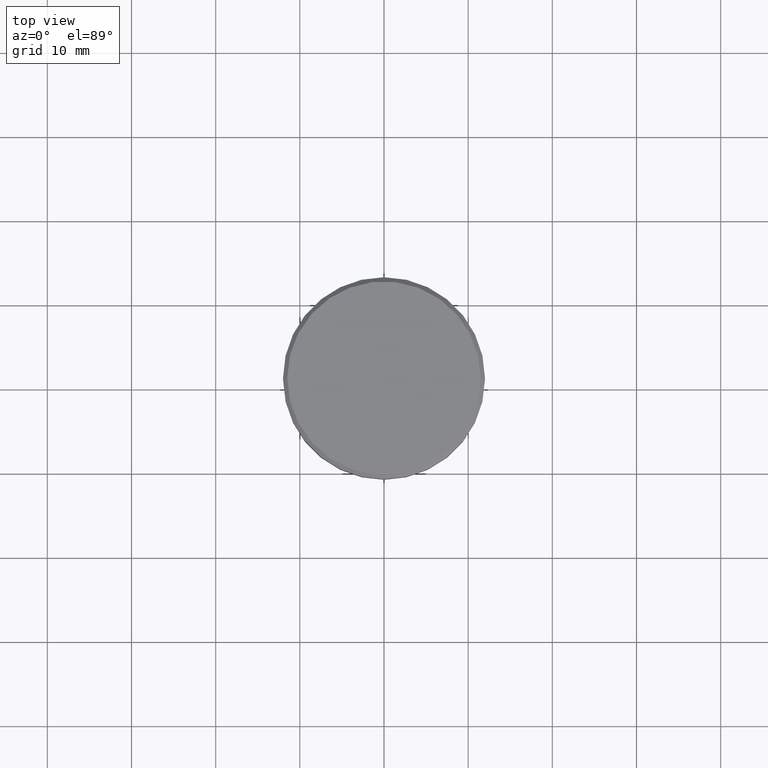
[diagram: clean part render]
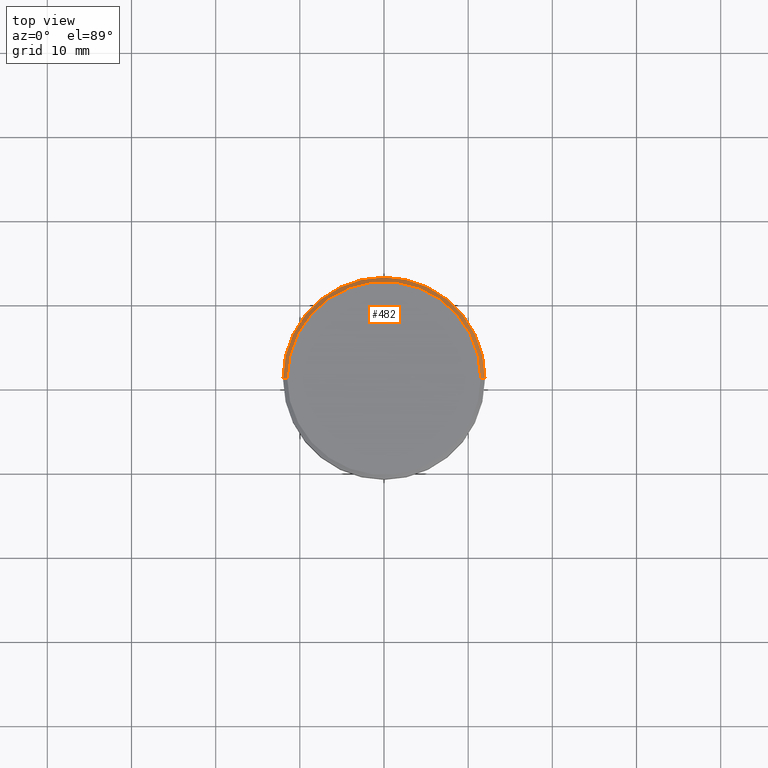
[diagram: same view with one face highlighted and labeled with its STEP entity id]
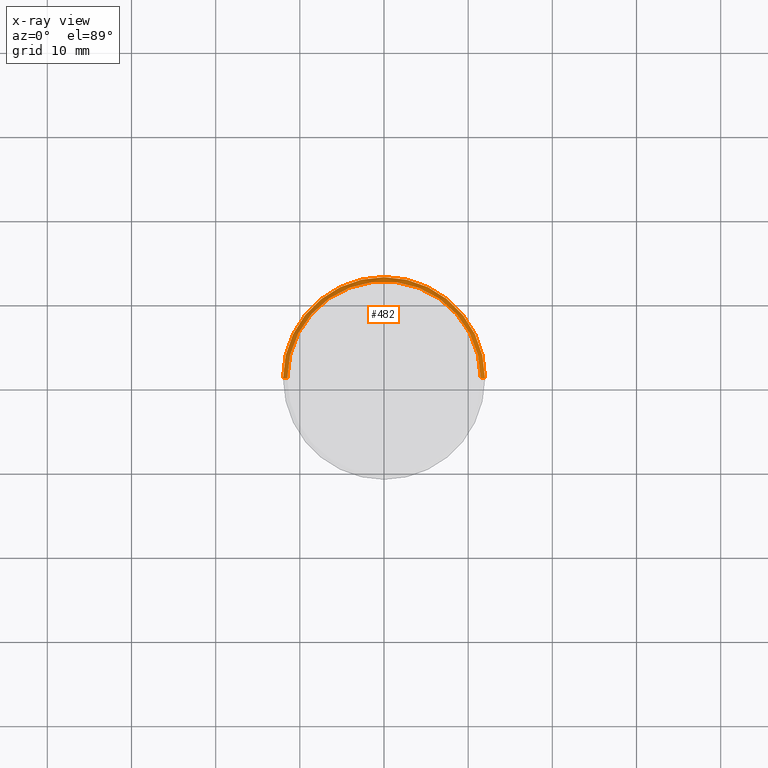
[diagram: x-ray of the same camera — body ghosted, the highlighted face saturated]
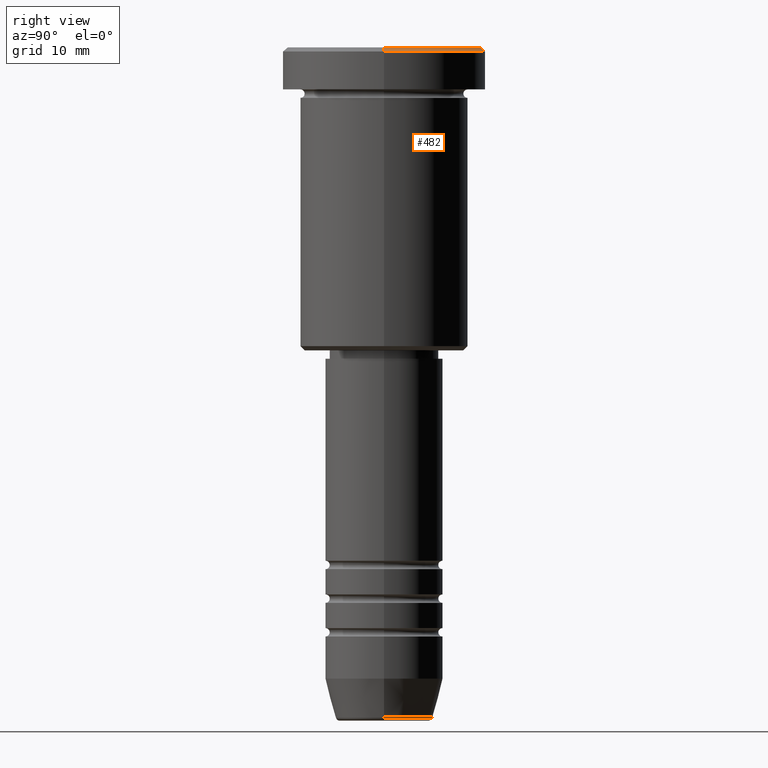
[diagram: same view with one face highlighted and labeled with its STEP entity id]
A machine part, top view. The second image highlights one B-rep face of the part: STEP entity #482.
The next image is the same camera in x-ray: the body ghosted, the highlighted face saturated — about 0% of this face is hidden behind the body in this view.
A second angle (right view) of the same face is appended — the face is thin or edge-on in the first view.
In plain terms, the highlighted conical surface has half-angle 45 deg.
Its self-contained STEP definition (entity closure, byte-faithful):
#8 = EDGE_CURVE ( 'NONE', #512, #329, #843, .T. ) ;
#16 = EDGE_CURVE ( 'NONE', #367, #329, #550, .T. ) ;
#20 = DIRECTION ( 'NONE',  ( -0.000000000000000000, -0.000000000000000000, 1.000000000000000000 ) ) ;
#39 = VERTEX_POINT ( 'NONE', #718 ) ;
#69 = CIRCLE ( 'NONE', #738, 11.49999999999999467 ) ;
#156 = DIRECTION ( 'NONE',  ( 1.000000000000000000, 0.000000000000000000, 0.000000000000000000 ) ) ;
#202 = ORIENTED_EDGE ( 'NONE', *, *, #1178, .F. ) ;
#218 = CARTESIAN_POINT ( 'NONE',  ( 0.000000000000000000, 0.000000000000000000, 0.000000000000000000 ) ) ;
#227 = VECTOR ( 'NONE', #323, 1000.000000000000000 ) ;
#237 = ORIENTED_EDGE ( 'NONE', *, *, #8, .T. ) ;
#287 = CARTESIAN_POINT ( 'NONE',  ( 0.000000000000000000, 0.000000000000000000, 0.000000000000000000 ) ) ;
#295 = CARTESIAN_POINT ( 'NONE',  ( 11.49999999999999467, 1.408343819019455584E-15, 0.000000000000000000 ) ) ;
#323 = DIRECTION ( 'NONE',  ( 0.7071067811865524577, 8.659560562354993255E-17, -0.7071067811865426878 ) ) ;
#329 = VERTEX_POINT ( 'NONE', #1094 ) ;
#351 = CARTESIAN_POINT ( 'NONE',  ( -11.49999999999999467, 0.000000000000000000, 0.000000000000000000 ) ) ;
#358 = DIRECTION ( 'NONE',  ( -0.7071067811865524577, 0.000000000000000000, -0.7071067811865426878 ) ) ;
#367 = VERTEX_POINT ( 'NONE', #446 ) ;
#381 = CONICAL_SURFACE ( 'NONE', #712, 11.49999999999999467, 0.7853981633974552734 ) ;
#446 = CARTESIAN_POINT ( 'NONE',  ( -12.00000000000000000, 1.469576158976823947E-15, -0.4999999999999987232 ) ) ;
#482 = ADVANCED_FACE ( 'NONE', ( #762 ), #381, .T. ) ;
#512 = VERTEX_POINT ( 'NONE', #573 ) ;
#516 = DIRECTION ( 'NONE',  ( 0.000000000000000000, 0.000000000000000000, -1.000000000000000000 ) ) ;
#550 = CIRCLE ( 'NONE', #952, 12.00000000000000000 ) ;
#570 = VECTOR ( 'NONE', #358, 1000.000000000000000 ) ;
#573 = CARTESIAN_POINT ( 'NONE',  ( 11.49999999999999467, 1.438959988998139766E-15, 0.000000000000000000 ) ) ;
#672 = DIRECTION ( 'NONE',  ( 1.000000000000000000, 0.000000000000000000, 0.000000000000000000 ) ) ;
#680 = DIRECTION ( 'NONE',  ( -1.000000000000000000, 0.000000000000000000, 0.000000000000000000 ) ) ;
#698 = CARTESIAN_POINT ( 'NONE',  ( 0.000000000000000000, 0.000000000000000000, -0.4999999999999987232 ) ) ;
#712 = AXIS2_PLACEMENT_3D ( 'NONE', #218, #770, #680 ) ;
#718 = CARTESIAN_POINT ( 'NONE',  ( -11.49999999999999467, 0.000000000000000000, 0.000000000000000000 ) ) ;
#738 = AXIS2_PLACEMENT_3D ( 'NONE', #287, #20, #672 ) ;
#762 = FACE_OUTER_BOUND ( 'NONE', #957, .T. ) ;
#770 = DIRECTION ( 'NONE',  ( 0.000000000000000000, 0.000000000000000000, -1.000000000000000000 ) ) ;
#843 = LINE ( 'NONE', #295, #227 ) ;
#896 = LINE ( 'NONE', #351, #570 ) ;
#930 = EDGE_CURVE ( 'NONE', #512, #39, #69, .T. ) ;
#952 = AXIS2_PLACEMENT_3D ( 'NONE', #698, #516, #156 ) ;
#957 = EDGE_LOOP ( 'NONE', ( #998, #237, #1175, #202 ) ) ;
#998 = ORIENTED_EDGE ( 'NONE', *, *, #930, .F. ) ;
#1094 = CARTESIAN_POINT ( 'NONE',  ( 12.00000000000000000, 0.000000000000000000, -0.4999999999999987232 ) ) ;
#1175 = ORIENTED_EDGE ( 'NONE', *, *, #16, .F. ) ;
#1178 = EDGE_CURVE ( 'NONE', #39, #367, #896, .T. ) ;